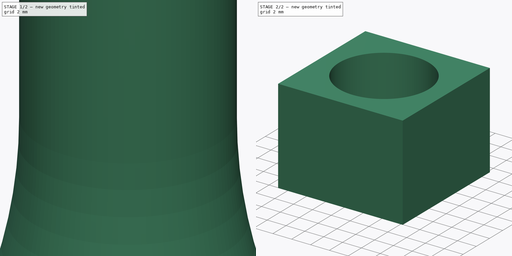
[diagram: build sequence overview — one tinted view per stage of 2, left to right]
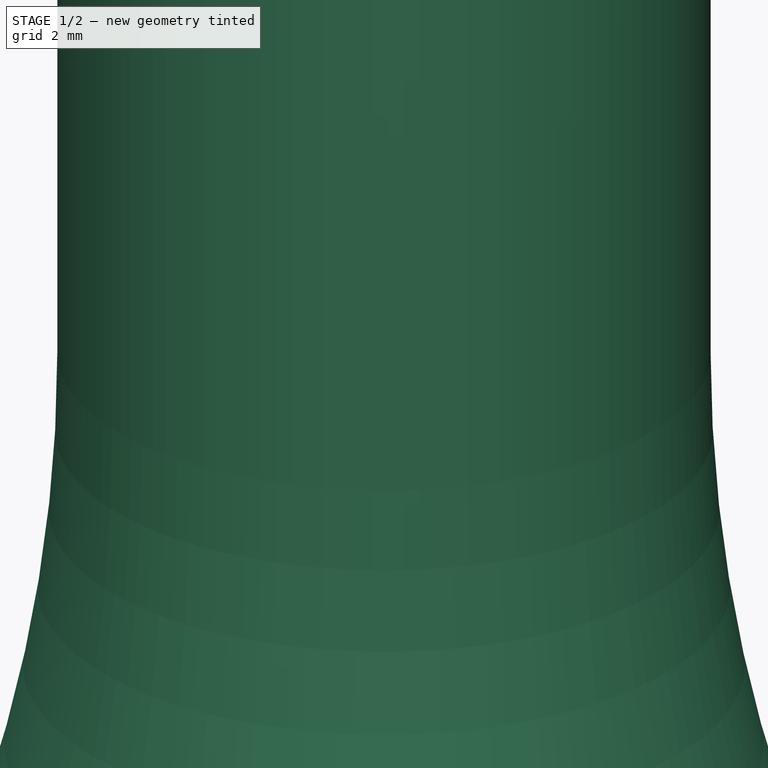
[diagram: stage 1 of 2 — iso view after this stage's code; geometry added in this stage tinted green]
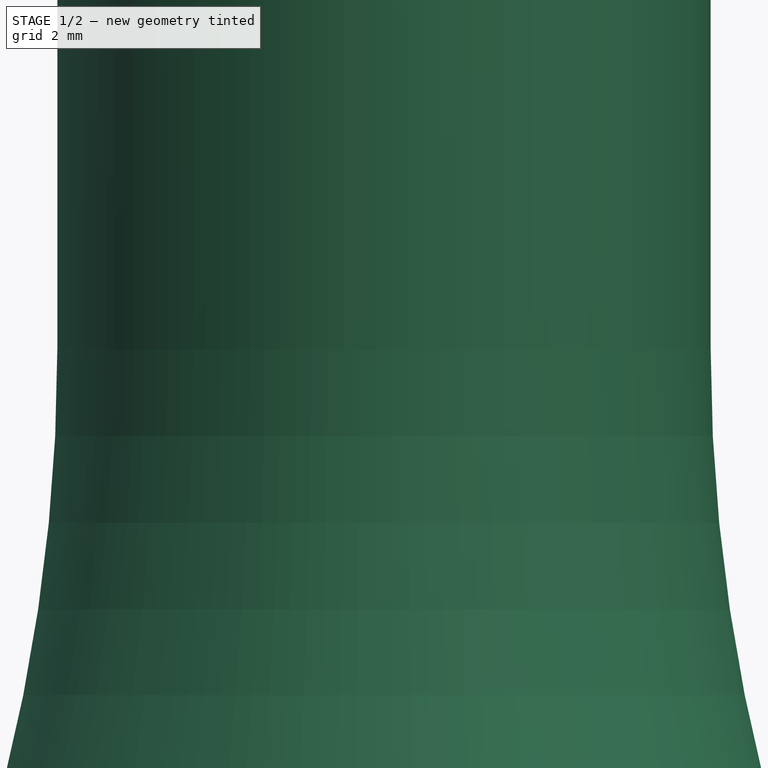
[diagram: stage 1 of 2 — front view after this stage's code; geometry added in this stage tinted green]
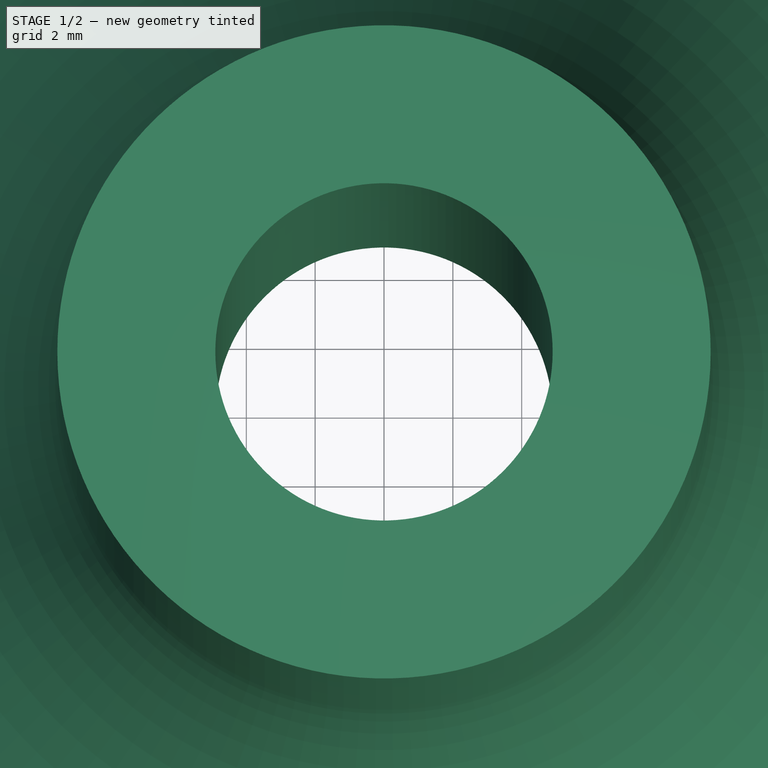
[diagram: stage 1 of 2 — top view after this stage's code; geometry added in this stage tinted green]
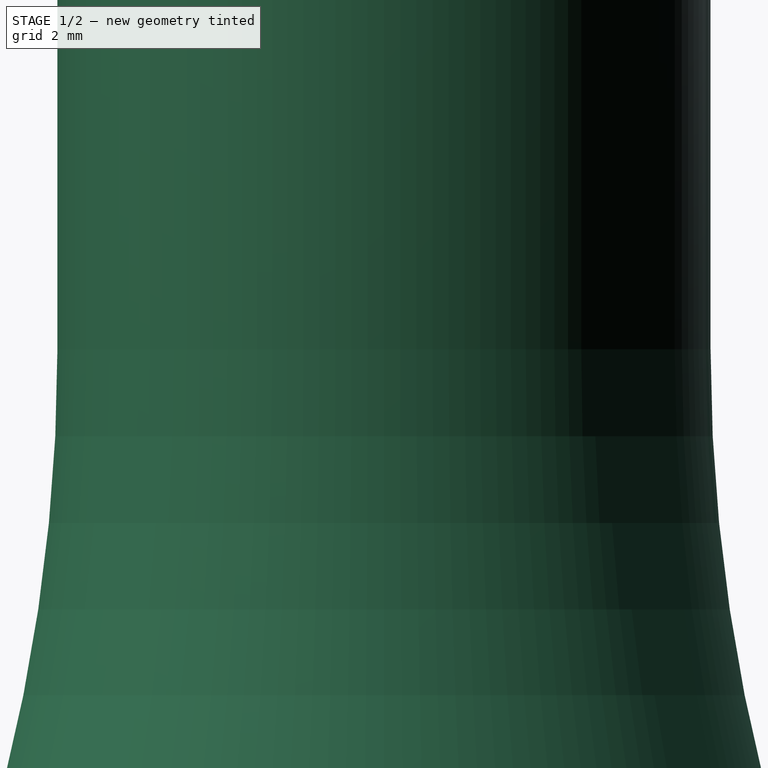
[diagram: stage 1 of 2 — right view after this stage's code; geometry added in this stage tinted green]
FCSTD DOCUMENT  (FreeCAD 0.18R16110 (Git))
Label: renewhubshaft
License: All rights reserved
LicenseURL: http://en.wikipedia.org/wiki/All_rights_reserved
objects: Sketcher::SketchObject×3, Part::Revolution×1, PartDesign::Pocket×1, PartDesign::PolarPattern×1, PartDesign::Body×1, Part::Extrusion×1
note: 9 computed .brp shape members not serialized (recipe doc carries the construction recipe); baked Part::Feature solids carry a one-line shape summary decoded from their .brp

FEATURE [Sketcher::SketchObject] Sketch
  Placement = pos=(0,0,0) rot=(1,0,0;1.5708rad)
  sketch-geometry (7):
    g0: LineSegment StartX=9.49 StartY=54.51 StartZ=0 EndX=9.49 EndY=107 EndZ=0
    g1: LineSegment StartX=9.49 StartY=107 StartZ=0 EndX=4.9 EndY=107 EndZ=0
    g2: LineSegment StartX=4.9 StartY=0 StartZ=0 EndX=70 EndY=0 EndZ=0
    g3: LineSegment StartX=70 StartY=0 StartZ=0 EndX=70 EndY=3 EndZ=0
    g4: LineSegment StartX=70 StartY=3 StartZ=0 EndX=61 EndY=3 EndZ=0
    g5: ArcOfCircle CenterX=61 CenterY=54.51 CenterZ=0 NormalX=0 NormalY=0 NormalZ=1 AngleXU=0 Radius=51.51 StartAngle=3.14159 EndAngle=4.71239
    g6: LineSegment StartX=4.9 StartY=107 StartZ=0 EndX=4.9 EndY=0 EndZ=0
  constraints (22):
    c: Vertical(g0)
    c: Horizontal(g1)
    c: Horizontal(g2)
    c: Coincident(g2,g3)
    c: Vertical(g3)
    c: Coincident(g3,g4)
    c: Horizontal(g4)
    c: DistanceY(g3,g3) = 3
    c: Coincident(g5,g0)
    c: Coincident(g5,g4)
    c: Tangent(g0,g5) = 1.5708
    c: Tangent(g4,g5) = 1.5708
    c: DistanceX(g4,g4) = 9
    c: DistanceX(g2) = 4.9
    c: DistanceX(g1) = 4.9
    c: Coincident(g6,g1)
    c: Coincident(g6,g2)
    c: DistanceX(g2) = 70
    c: DistanceY(g2) = 0
    c: DistanceX(g1,g1) = 4.59
    c: DistanceY(g6,g6) = 107
    c: Coincident(g1,g0)
FEATURE [Part::Revolution] Revolve
  Angle = 360
  Axis = (0,0,1)
  Base = (0,0,0)
  FaceMakerClass = Part::FaceMakerBullseye
  Solid = true
  Source = -> Sketch
  Symmetric = false
FEATURE [Sketcher::SketchObject] Sketch001
  MapMode = 2
  Support = -> [Revolve]
  sketch-geometry (4):
    g0: Circle [constr] CenterX=0 CenterY=0 CenterZ=0 NormalX=0 NormalY=0 NormalZ=1 AngleXU=0 Radius=65.5
    g1: Circle CenterX=-21.8023 CenterY=61.765 CenterZ=0 NormalX=0 NormalY=0 NormalZ=1 AngleXU=0 Radius=2.5
    g2: Circle CenterX=0.162463 CenterY=65.4998 CenterZ=0 NormalX=0 NormalY=0 NormalZ=1 AngleXU=0 Radius=2.5
    g3: LineSegment [constr] StartX=-21.8023 StartY=61.765 StartZ=0 EndX=0.162463 EndY=65.4998 EndZ=0
  constraints (8):
    c: Radius(g0) = 65.5
    c: PointOnObject(g1,g0)
    c: Radius(g1) = 2.5
    c: PointOnObject(g2,g0)
    c: Coincident(g0,g-1)
    c: Coincident(g3,g1)
    c: Coincident(g3,g2)
    c: Distance(g3) = 22.28
FEATURE [PartDesign::Pocket] Pocket
  Length = 3
  Length2 = 100
  Profile = -> Sketch001
  Reversed = true
  Type = 0
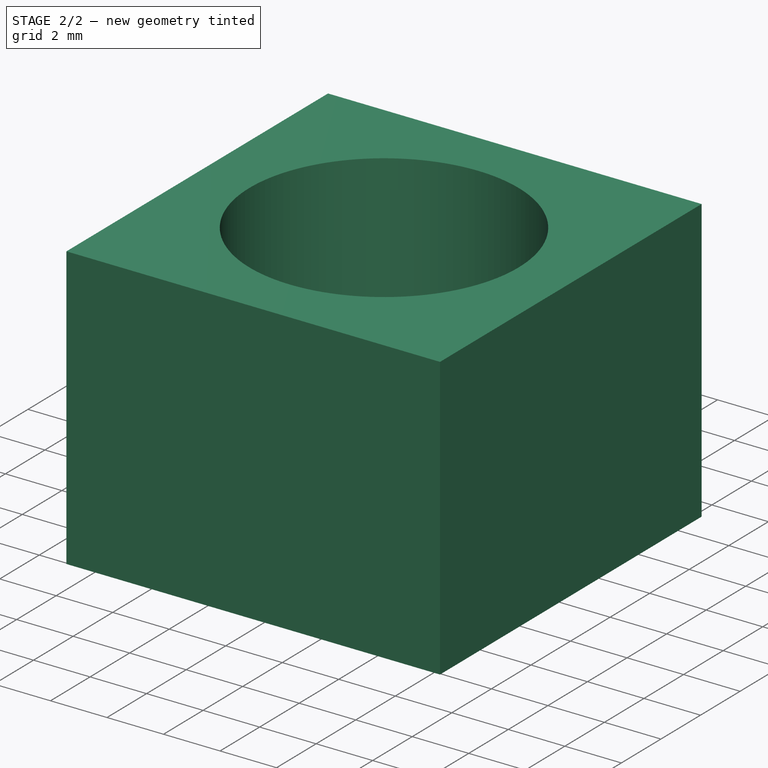
[diagram: stage 2 of 2 — iso view after this stage's code; geometry added in this stage tinted green]
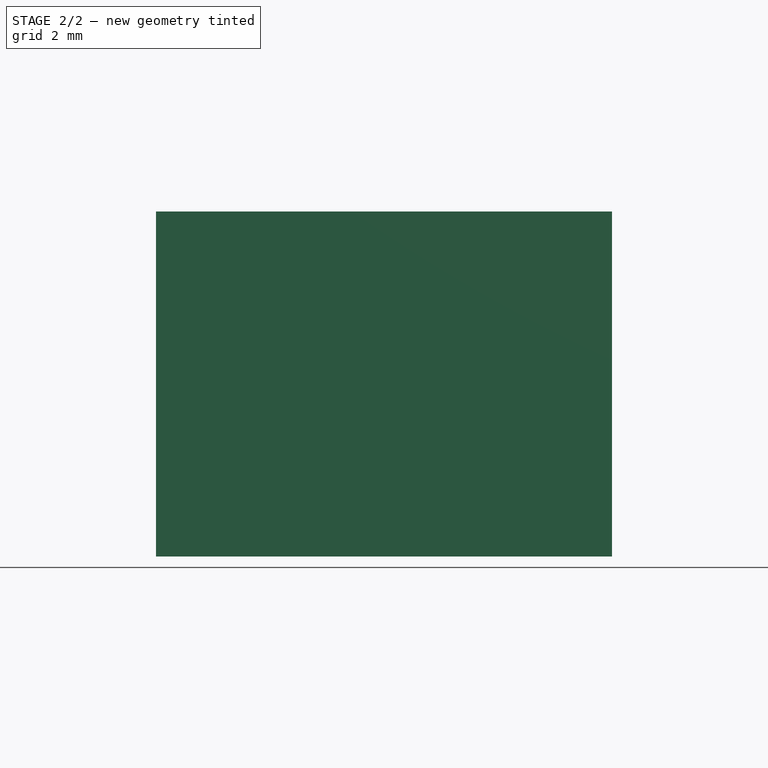
[diagram: stage 2 of 2 — front view after this stage's code; geometry added in this stage tinted green]
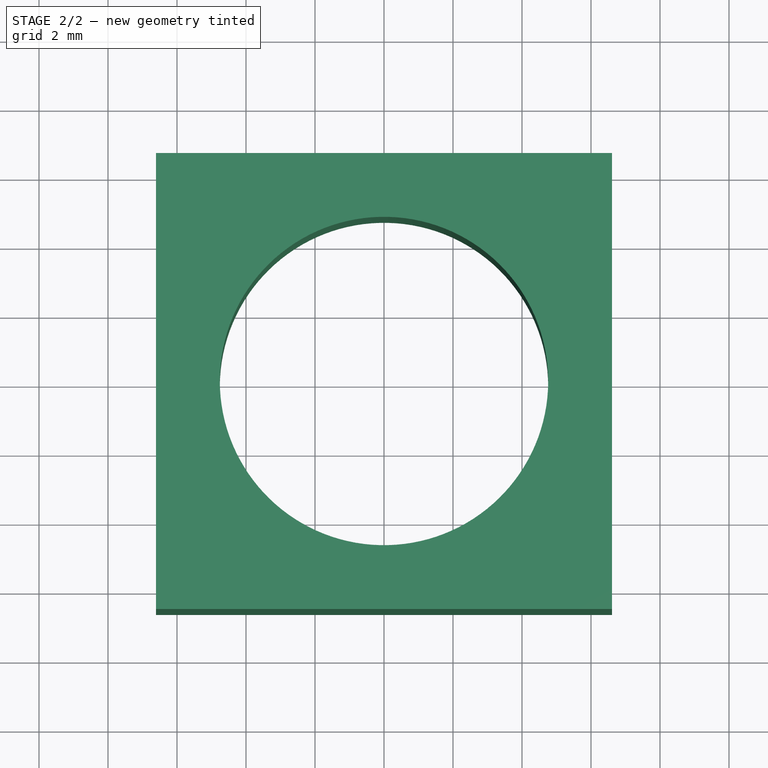
[diagram: stage 2 of 2 — top view after this stage's code; geometry added in this stage tinted green]
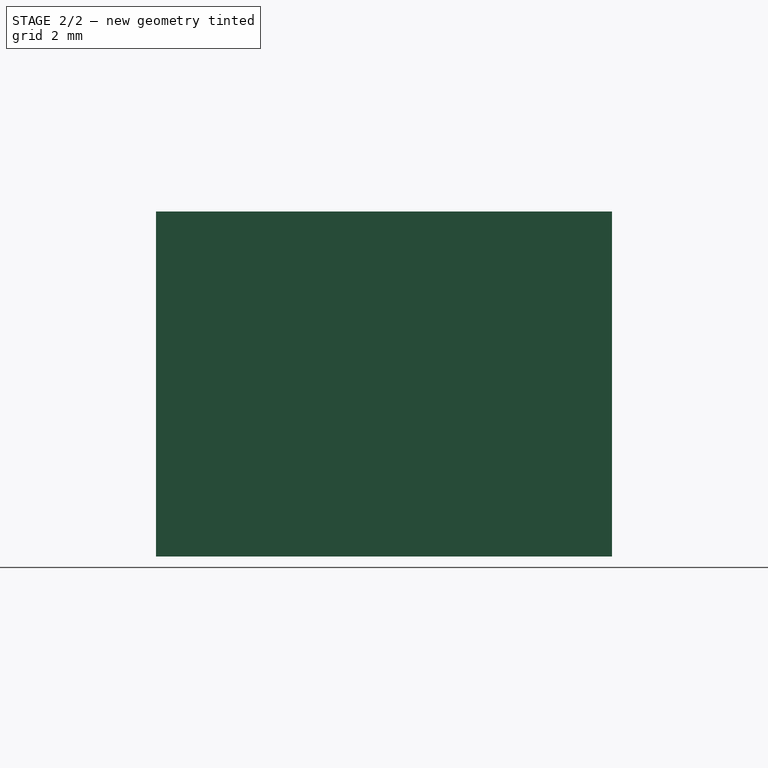
[diagram: stage 2 of 2 — right view after this stage's code; geometry added in this stage tinted green]
FEATURE [PartDesign::PolarPattern] PolarPattern
  Angle = 360
  Axis = -> Sketch001 [N_Axis]
  BaseFeature = -> Pocket
  Occurrences = 6
  Originals = -> [Pocket]
  Reversed = true
FEATURE [PartDesign::Body] Body
  Group = -> [Pocket,PolarPattern]
  Origin = -> Origin
  Tip = -> PolarPattern
FEATURE [Sketcher::SketchObject] Sketch002
  MapMode = 5
  Placement = pos=(0,0,0) rot=(1,0,0;3.14159rad)
  Support = -> [PolarPattern]
  sketch-geometry (6):
    g0: LineSegment StartX=-6.61 StartY=6.61 StartZ=0 EndX=-6.61 EndY=-6.61 EndZ=0
    g1: LineSegment StartX=-6.61 StartY=-6.61 StartZ=0 EndX=6.61 EndY=-6.61 EndZ=0
    g2: LineSegment StartX=6.61 StartY=-6.61 StartZ=0 EndX=6.61 EndY=6.61 EndZ=0
    g3: LineSegment StartX=6.61 StartY=6.61 StartZ=0 EndX=-6.61 EndY=6.61 EndZ=0
    g4: Circle [constr] CenterX=0 CenterY=0 CenterZ=0 NormalX=0 NormalY=0 NormalZ=1 AngleXU=0 Radius=9.34795
    g5: Circle CenterX=0 CenterY=0 CenterZ=0 NormalX=0 NormalY=0 NormalZ=1 AngleXU=0 Radius=4.76
  constraints (16):
    c: Coincident(g0,g1)
    c: Coincident(g1,g2)
    c: Coincident(g2,g3)
    c: Coincident(g3,g0)
    c: Equal(g0,g1)
    c: Equal(g0,g2)
    c: Equal(g0,g3)
    c: PointOnObject(g0,g4)
    c: PointOnObject(g1,g4)
    c: PointOnObject(g2,g4)
    c: PointOnObject(g3,g4)
    c: Coincident(g4,g-1)
    c: Horizontal(g3)
    c: Distance(g3) = 13.22
    c: Coincident(g5,g-1)
    c: Radius(g5) = 4.76
FEATURE [Part::Extrusion] Extrude
  Base = -> Sketch002
  Dir = (0,0,-1)
  DirMode = 2
  FaceMakerClass = Part::FaceMakerBullseye
  LengthFwd = 10
  LengthRev = 0
  Placement = pos=(0,0,117) rot=(0,0,1;0rad)
  Solid = true
  Symmetric = false
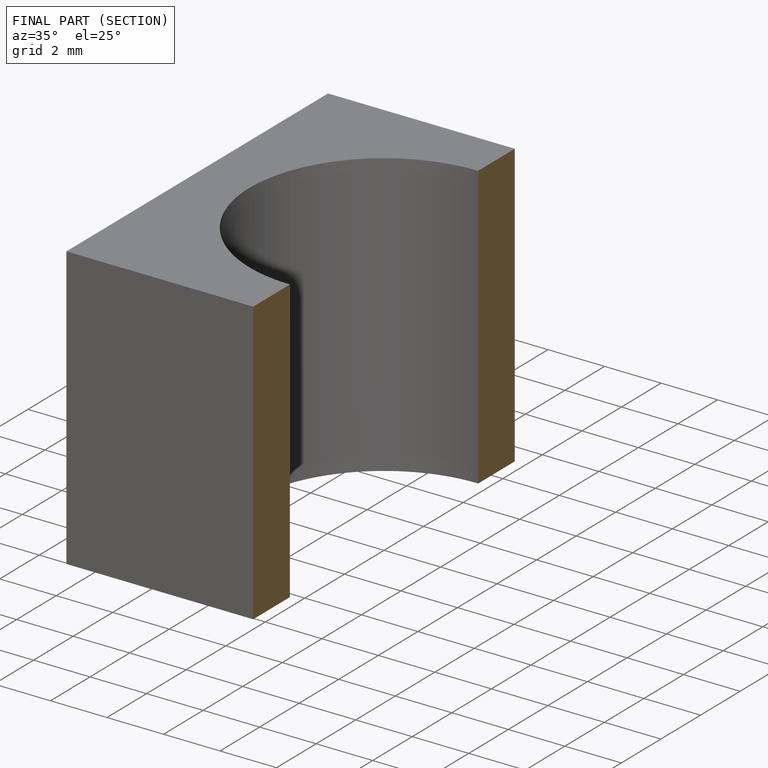
[diagram: finished part — half-section view (interior)]
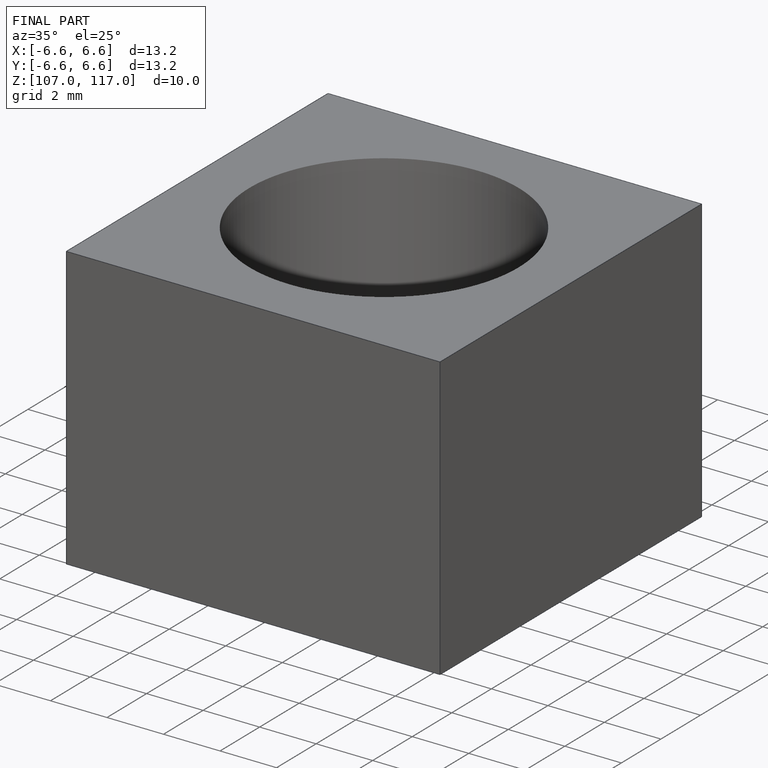
[diagram: finished part — iso view with bounding-box wireframe]
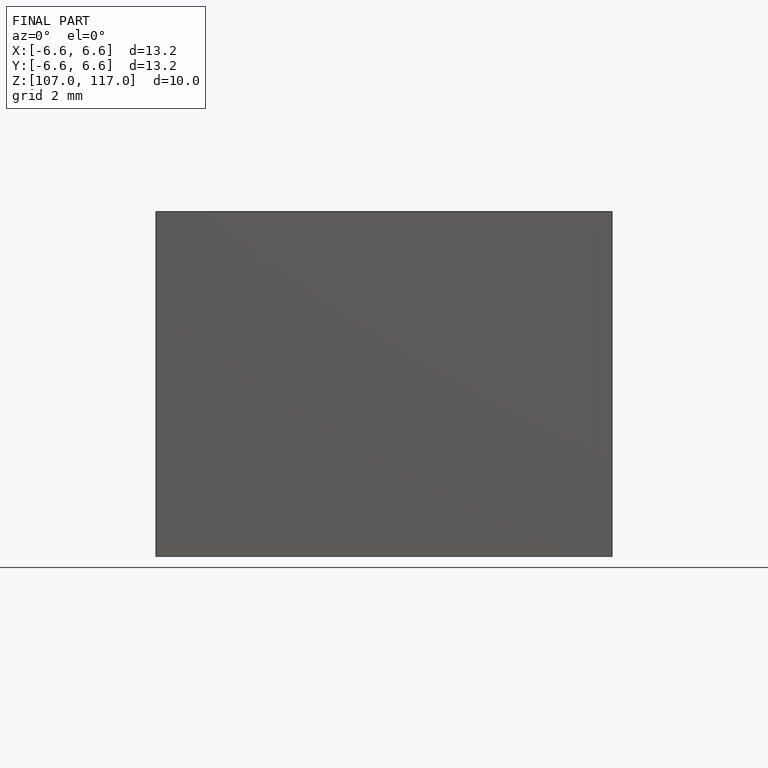
[diagram: finished part — front view with bounding-box wireframe]
